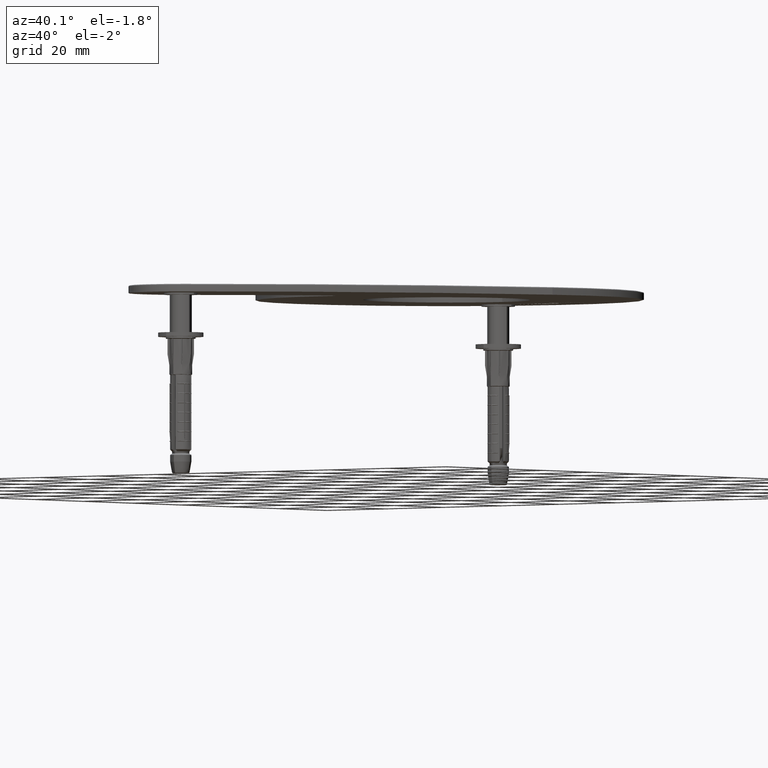
[diagram: clean part render]
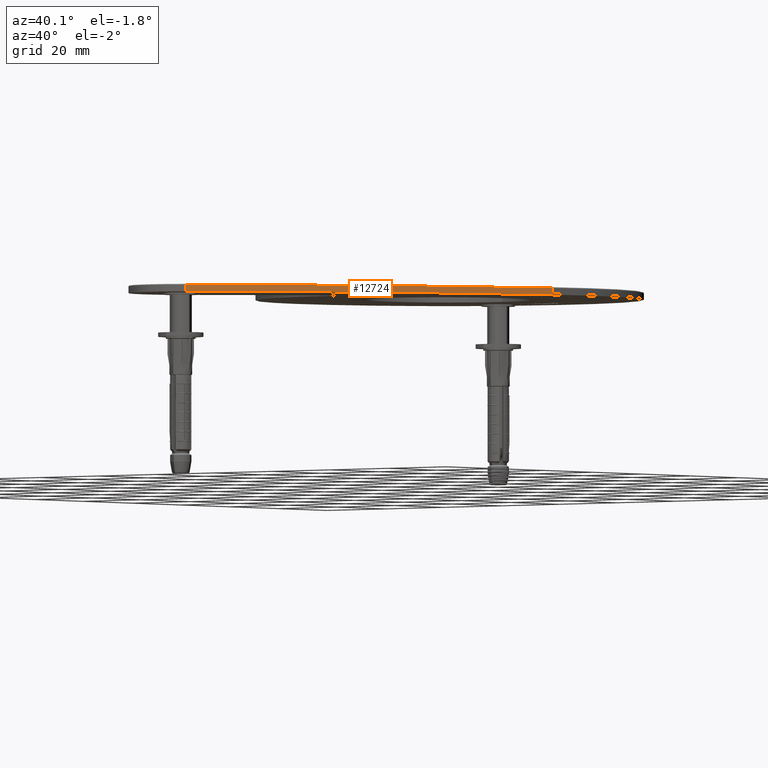
[diagram: same view with one face highlighted and labeled with its STEP entity id]
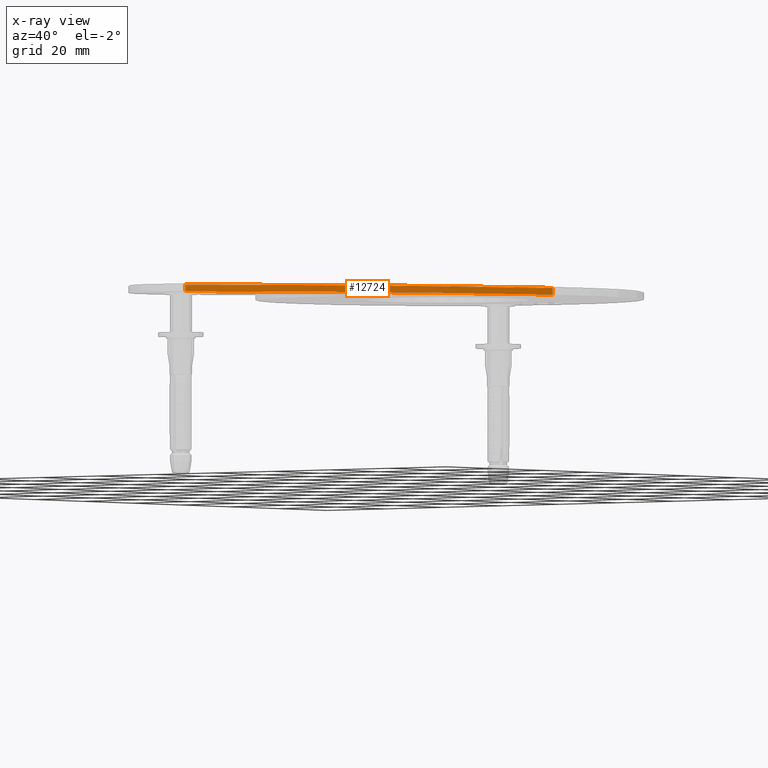
[diagram: x-ray of the same camera — body ghosted, the highlighted face saturated]
A machine part, auxiliary view. The second image highlights one B-rep face of the part: STEP entity #12724.
The next image is the same camera in x-ray: the body ghosted, the highlighted face saturated — about 0% of this face is hidden behind the body in this view.
In plain terms, the highlighted cylindrical surface (partial cylindrical patch) has radius 180 mm, axis along (-0, -0, -1).
Its self-contained STEP definition (entity closure, byte-faithful):
#1474 = VERTEX_POINT ( 'NONE', #10859 ) ;
#2822 = CARTESIAN_POINT ( 'NONE',  ( 77.09773571845948936, 82.06936023787835666, 2.000000000000000000 ) ) ;
#3496 = ORIENTED_EDGE ( 'NONE', *, *, #8538, .T. ) ;
#4565 = DIRECTION ( 'NONE',  ( -1.000000000000000000, 0.000000000000000000, 0.000000000000000000 ) ) ;
#5281 = CYLINDRICAL_SURFACE ( 'NONE', #39517, 180.0000000000000284 ) ;
#5728 = DIRECTION ( 'NONE',  ( -1.000000000000000000, 0.000000000000000000, 0.000000000000000000 ) ) ;
#7529 = EDGE_CURVE ( 'NONE', #1474, #34894, #9366, .T. ) ;
#8538 = EDGE_CURVE ( 'NONE', #23286, #1474, #9288, .T. ) ;
#9288 = LINE ( 'NONE', #21218, #37831 ) ;
#9366 = CIRCLE ( 'NONE', #23924, 180.0000000000000000 ) ;
#10119 = EDGE_CURVE ( 'NONE', #29901, #23286, #34038, .T. ) ;
#10859 = CARTESIAN_POINT ( 'NONE',  ( 21.13337458475421471, -1.838607804960423753, 0.000000000000000000 ) ) ;
#10876 = EDGE_CURVE ( 'NONE', #29901, #34894, #13449, .T. ) ;
#11224 = EDGE_LOOP ( 'NONE', ( #30114, #34977, #3496, #38831 ) ) ;
#12724 = ADVANCED_FACE ( 'NONE', ( #34864 ), #5281, .T. ) ;
#13284 = DIRECTION ( 'NONE',  ( 0.000000000000000000, 0.000000000000000000, 1.000000000000000000 ) ) ;
#13449 = LINE ( 'NONE', #2822, #16826 ) ;
#14948 = DIRECTION ( 'NONE',  ( -0.000000000000000000, -0.000000000000000000, -1.000000000000000000 ) ) ;
#15340 = DIRECTION ( 'NONE',  ( -0.000000000000000000, -0.000000000000000000, -1.000000000000000000 ) ) ;
#16826 = VECTOR ( 'NONE', #14948, 1000.000000000000000 ) ;
#18957 = CARTESIAN_POINT ( 'NONE',  ( 77.09773571845948936, 82.06936023787835666, 1.750000000000000000 ) ) ;
#19542 = DIRECTION ( 'NONE',  ( -0.000000000000000000, -0.000000000000000000, -1.000000000000000000 ) ) ;
#21178 = DIRECTION ( 'NONE',  ( -0.000000000000000000, -0.000000000000000000, -1.000000000000000000 ) ) ;
#21218 = CARTESIAN_POINT ( 'NONE',  ( 21.13337458475421471, -1.838607804960423753, 2.000000000000000000 ) ) ;
#23286 = VERTEX_POINT ( 'NONE', #38261 ) ;
#23924 = AXIS2_PLACEMENT_3D ( 'NONE', #37537, #13284, #37670 ) ;
#29901 = VERTEX_POINT ( 'NONE', #18957 ) ;
#30114 = ORIENTED_EDGE ( 'NONE', *, *, #10876, .F. ) ;
#30653 = CARTESIAN_POINT ( 'NONE',  ( -94.63522609400968122, 135.9932865333272787, 1.750000000000000000 ) ) ;
#33096 = CARTESIAN_POINT ( 'NONE',  ( 77.09773571845948936, 82.06936023787835666, 0.000000000000000000 ) ) ;
#33371 = AXIS2_PLACEMENT_3D ( 'NONE', #30653, #21178, #5728 ) ;
#34038 = CIRCLE ( 'NONE', #33371, 180.0000000000000284 ) ;
#34827 = CARTESIAN_POINT ( 'NONE',  ( -94.63522609400968122, 135.9932865333272787, 2.000000000000000000 ) ) ;
#34864 = FACE_OUTER_BOUND ( 'NONE', #11224, .T. ) ;
#34894 = VERTEX_POINT ( 'NONE', #33096 ) ;
#34977 = ORIENTED_EDGE ( 'NONE', *, *, #10119, .T. ) ;
#37537 = CARTESIAN_POINT ( 'NONE',  ( -94.63522609400968122, 135.9932865333272787, 0.000000000000000000 ) ) ;
#37670 = DIRECTION ( 'NONE',  ( 1.000000000000000000, 0.000000000000000000, 0.000000000000000000 ) ) ;
#37831 = VECTOR ( 'NONE', #15340, 1000.000000000000000 ) ;
#38261 = CARTESIAN_POINT ( 'NONE',  ( 21.13337458475421471, -1.838607804960423753, 1.750000000000000000 ) ) ;
#38831 = ORIENTED_EDGE ( 'NONE', *, *, #7529, .T. ) ;
#39517 = AXIS2_PLACEMENT_3D ( 'NONE', #34827, #19542, #4565 ) ;